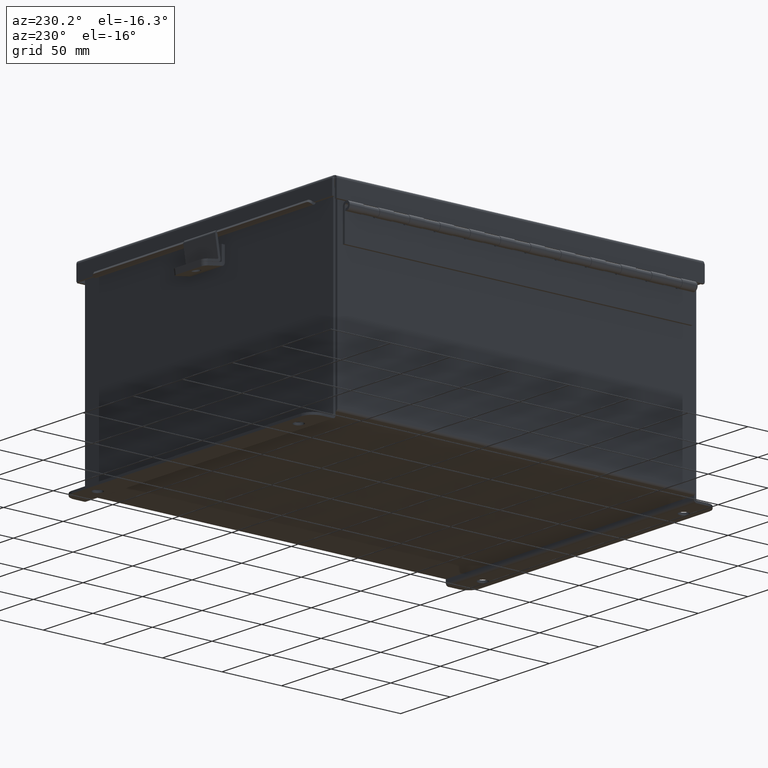
[diagram: clean part render]
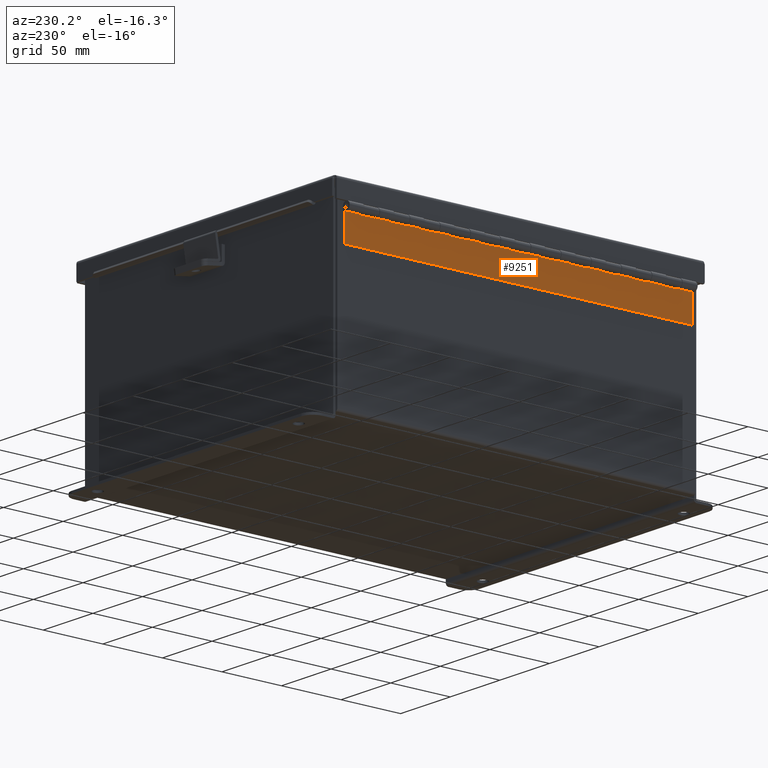
[diagram: same view with one face highlighted and labeled with its STEP entity id]
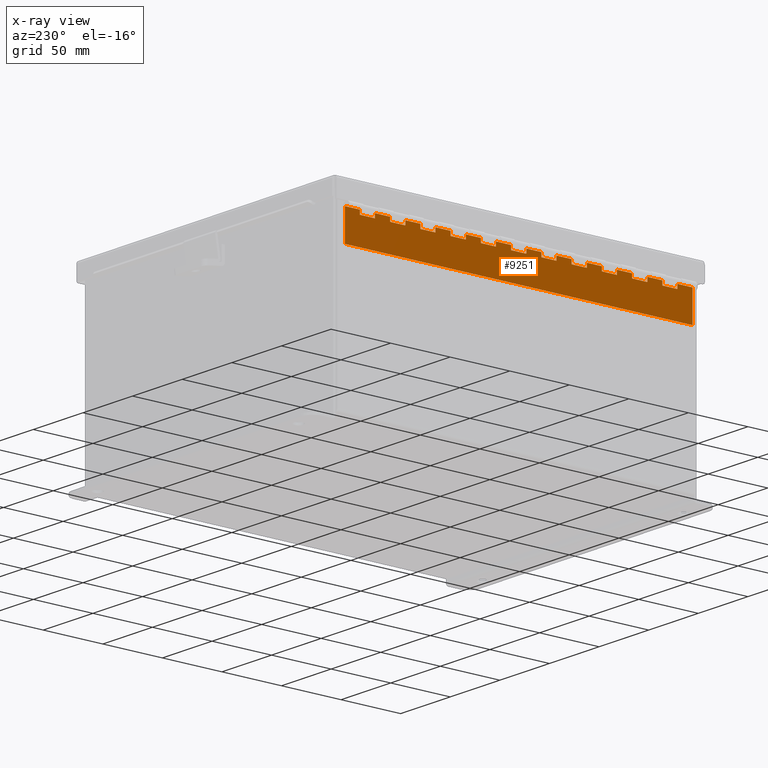
[diagram: x-ray of the same camera — body ghosted, the highlighted face saturated]
A machine part, auxiliary view. The second image highlights one B-rep face of the part: STEP entity #9251.
The next image is the same camera in x-ray: the body ghosted, the highlighted face saturated — about 0% of this face is hidden behind the body in this view.
In plain terms, the highlighted planar face has unit normal (1, -0, 0).
Its self-contained STEP definition (entity closure, byte-faithful):
#199 = LINE ( 'NONE', #3703, #7490 ) ;
#201 = VECTOR ( 'NONE', #17609, 39.37007874015748100 ) ;
#202 = DIRECTION ( 'NONE',  ( -1.000000000000000000, 0.0000000000000000000, 0.0000000000000000000 ) ) ;
#411 = DIRECTION ( 'NONE',  ( -1.000000000000000000, 0.0000000000000000000, 0.0000000000000000000 ) ) ;
#416 = LINE ( 'NONE', #12685, #7262 ) ;
#495 = EDGE_CURVE ( 'NONE', #707, #4912, #10691, .T. ) ;
#596 = VERTEX_POINT ( 'NONE', #8885 ) ;
#638 = LINE ( 'NONE', #2566, #201 ) ;
#656 = ORIENTED_EDGE ( 'NONE', *, *, #15942, .F. ) ;
#707 = VERTEX_POINT ( 'NONE', #2208 ) ;
#740 = VECTOR ( 'NONE', #9662, 39.37007874015748100 ) ;
#760 = EDGE_CURVE ( 'NONE', #14260, #4131, #7270, .T. ) ;
#774 = EDGE_CURVE ( 'NONE', #15747, #15219, #10453, .T. ) ;
#801 = LINE ( 'NONE', #13685, #16627 ) ;
#812 = CARTESIAN_POINT ( 'NONE',  ( 0.0000000000000000000, 11.00000000000000000, 0.0000000000000000000 ) ) ;
#890 = CARTESIAN_POINT ( 'NONE',  ( 0.1365000000000000100, 10.00000000000000000, -1.707404996040164500E-017 ) ) ;
#907 = EDGE_CURVE ( 'NONE', #11477, #2681, #4731, .T. ) ;
#1003 = DIRECTION ( 'NONE',  ( -1.000000000000000000, 8.005415366049128100E-015, 0.0000000000000000000 ) ) ;
#1041 = VECTOR ( 'NONE', #2680, 39.37007874015748100 ) ;
#1085 = DIRECTION ( 'NONE',  ( 1.000000000000000000, 0.0000000000000000000, 0.0000000000000000000 ) ) ;
#1093 = LINE ( 'NONE', #11689, #4342 ) ;
#1110 = EDGE_CURVE ( 'NONE', #4662, #2193, #9207, .T. ) ;
#1178 = ORIENTED_EDGE ( 'NONE', *, *, #10729, .F. ) ;
#1197 = VERTEX_POINT ( 'NONE', #5964 ) ;
#1381 = LINE ( 'NONE', #14331, #3757 ) ;
#1388 = CARTESIAN_POINT ( 'NONE',  ( 0.1365000000000000100, 0.0000000000000000000, -1.707404996040164500E-017 ) ) ;
#1397 = VERTEX_POINT ( 'NONE', #2372 ) ;
#1448 = LINE ( 'NONE', #8013, #15557 ) ;
#1575 = VERTEX_POINT ( 'NONE', #15322 ) ;
#1633 = CARTESIAN_POINT ( 'NONE',  ( 0.2730000000000000200, -9.000000000000000000, 0.0000000000000000000 ) ) ;
#1661 = ORIENTED_EDGE ( 'NONE', *, *, #6716, .F. ) ;
#1754 = VERTEX_POINT ( 'NONE', #10288 ) ;
#1759 = EDGE_CURVE ( 'NONE', #8705, #8850, #199, .T. ) ;
#1771 = DIRECTION ( 'NONE',  ( -1.000000000000000000, 0.0000000000000000000, 0.0000000000000000000 ) ) ;
#1779 = DIRECTION ( 'NONE',  ( -1.000000000000000000, 8.005415366049128100E-015, 0.0000000000000000000 ) ) ;
#1805 = VERTEX_POINT ( 'NONE', #14732 ) ;
#1822 = VECTOR ( 'NONE', #15831, 39.37007874015748100 ) ;
#1858 = VECTOR ( 'NONE', #17017, 39.37007874015748100 ) ;
#1953 = EDGE_CURVE ( 'NONE', #4898, #7984, #4928, .T. ) ;
#2043 = VECTOR ( 'NONE', #11967, 39.37007874015748100 ) ;
#2065 = DIRECTION ( 'NONE',  ( 0.0000000000000000000, 1.000000000000000000, 0.0000000000000000000 ) ) ;
#2073 = VECTOR ( 'NONE', #15021, 39.37007874015748100 ) ;
#2193 = VERTEX_POINT ( 'NONE', #14058 ) ;
#2208 = CARTESIAN_POINT ( 'NONE',  ( 0.2730000000000000200, 9.499999999999998200, 0.0000000000000000000 ) ) ;
#2331 = DIRECTION ( 'NONE',  ( -1.000000000000000000, 0.0000000000000000000, 0.0000000000000000000 ) ) ;
#2371 = VECTOR ( 'NONE', #15329, 39.37007874015748100 ) ;
#2372 = CARTESIAN_POINT ( 'NONE',  ( 0.2730000000000000200, 0.9999999999999992200, 0.0000000000000000000 ) ) ;
#2436 = CARTESIAN_POINT ( 'NONE',  ( 8.405686134351585600E-014, 9.500000000000000000, 0.0000000000000000000 ) ) ;
#2480 = LINE ( 'NONE', #10590, #2043 ) ;
#2566 = CARTESIAN_POINT ( 'NONE',  ( 8.405686134351585600E-014, 1.499999999999999800, 0.0000000000000000000 ) ) ;
#2596 = DIRECTION ( 'NONE',  ( 0.0000000000000000000, 1.000000000000000000, 0.0000000000000000000 ) ) ;
#2680 = DIRECTION ( 'NONE',  ( -1.000000000000000000, -0.0000000000000000000, -0.0000000000000000000 ) ) ;
#2681 = VERTEX_POINT ( 'NONE', #4217 ) ;
#2996 = EDGE_CURVE ( 'NONE', #1754, #7348, #801, .T. ) ;
#2998 = CARTESIAN_POINT ( 'NONE',  ( 0.2730000000000000200, 2.499999999999997800, 0.0000000000000000000 ) ) ;
#3015 = LINE ( 'NONE', #5911, #10258 ) ;
#3044 = LINE ( 'NONE', #8412, #17149 ) ;
#3115 = ORIENTED_EDGE ( 'NONE', *, *, #13998, .F. ) ;
#3157 = VECTOR ( 'NONE', #13425, 39.37007874015748100 ) ;
#3200 = LINE ( 'NONE', #12672, #13649 ) ;
#3228 = VECTOR ( 'NONE', #9245, 39.37007874015748100 ) ;
#3256 = DIRECTION ( 'NONE',  ( 0.0000000000000000000, 1.000000000000000000, 0.0000000000000000000 ) ) ;
#3258 = DIRECTION ( 'NONE',  ( 0.0000000000000000000, 1.000000000000000000, 0.0000000000000000000 ) ) ;
#3259 = CARTESIAN_POINT ( 'NONE',  ( 0.1365000000000000100, 0.0000000000000000000, -1.707404996040164500E-017 ) ) ;
#3360 = CARTESIAN_POINT ( 'NONE',  ( 0.1365000000000000100, 7.000000000000000000, -1.707404996040164500E-017 ) ) ;
#3388 = CARTESIAN_POINT ( 'NONE',  ( 0.2730000000000000200, 0.4999999999999973900, 0.0000000000000000000 ) ) ;
#3507 = CARTESIAN_POINT ( 'NONE',  ( 0.1365000000000000100, 8.999999999999998200, -1.707404996040164500E-017 ) ) ;
#3536 = DIRECTION ( 'NONE',  ( -1.000000000000000000, 0.0000000000000000000, 0.0000000000000000000 ) ) ;
#3538 = CARTESIAN_POINT ( 'NONE',  ( 0.1365000000000000100, 0.0000000000000000000, -1.707404996040164500E-017 ) ) ;
#3652 = EDGE_CURVE ( 'NONE', #8637, #17015, #3044, .T. ) ;
#3682 = ORIENTED_EDGE ( 'NONE', *, *, #14964, .F. ) ;
#3694 = CARTESIAN_POINT ( 'NONE',  ( 0.1365000000000000100, 5.999999999999999100, -1.707404996040164500E-017 ) ) ;
#3703 = CARTESIAN_POINT ( 'NONE',  ( 0.0000000000000000000, 1.999999999999999300, 0.0000000000000000000 ) ) ;
#3725 = LINE ( 'NONE', #9006, #10101 ) ;
#3757 = VECTOR ( 'NONE', #15631, 39.37007874015748100 ) ;
#3812 = ORIENTED_EDGE ( 'NONE', *, *, #4705, .T. ) ;
#3829 = ORIENTED_EDGE ( 'NONE', *, *, #1110, .F. ) ;
#3867 = ORIENTED_EDGE ( 'NONE', *, *, #5147, .T. ) ;
#3972 = PLANE ( 'NONE',  #16067 ) ;
#4067 = CARTESIAN_POINT ( 'NONE',  ( 0.1365000000000000100, 0.4999999999999996100, -1.707404996040164500E-017 ) ) ;
#4103 = VERTEX_POINT ( 'NONE', #16162 ) ;
#4104 = VECTOR ( 'NONE', #1003, 39.37007874015748100 ) ;
#4111 = VECTOR ( 'NONE', #11603, 39.37007874015748100 ) ;
#4131 = VERTEX_POINT ( 'NONE', #13473 ) ;
#4175 = DIRECTION ( 'NONE',  ( 0.0000000000000000000, 1.000000000000000000, 0.0000000000000000000 ) ) ;
#4204 = CARTESIAN_POINT ( 'NONE',  ( 0.0000000000000000000, 8.000000000000000000, 0.0000000000000000000 ) ) ;
#4217 = CARTESIAN_POINT ( 'NONE',  ( 0.1365000000000000100, 10.50000000000000000, -1.707404996040164500E-017 ) ) ;
#4307 = VECTOR ( 'NONE', #8999, 39.37007874015748100 ) ;
#4320 = EDGE_CURVE ( 'NONE', #596, #13833, #11757, .T. ) ;
#4342 = VECTOR ( 'NONE', #14461, 39.37007874015748100 ) ;
#4362 = ORIENTED_EDGE ( 'NONE', *, *, #15696, .F. ) ;
#4381 = ORIENTED_EDGE ( 'NONE', *, *, #17194, .T. ) ;
#4414 = LINE ( 'NONE', #4204, #740 ) ;
#4430 = VERTEX_POINT ( 'NONE', #16193 ) ;
#4481 = VECTOR ( 'NONE', #14592, 39.37007874015748100 ) ;
#4490 = CARTESIAN_POINT ( 'NONE',  ( 0.2730000000000000200, 8.999999999999998200, 0.0000000000000000000 ) ) ;
#4565 = DIRECTION ( 'NONE',  ( 0.0000000000000000000, 1.000000000000000000, 0.0000000000000000000 ) ) ;
#4614 = ORIENTED_EDGE ( 'NONE', *, *, #4867, .T. ) ;
#4621 = VERTEX_POINT ( 'NONE', #2998 ) ;
#4662 = VERTEX_POINT ( 'NONE', #5804 ) ;
#4705 = EDGE_CURVE ( 'NONE', #4662, #1805, #17118, .T. ) ;
#4712 = LINE ( 'NONE', #8125, #1041 ) ;
#4722 = EDGE_CURVE ( 'NONE', #1397, #6184, #3015, .T. ) ;
#4731 = LINE ( 'NONE', #17676, #15600 ) ;
#4756 = CARTESIAN_POINT ( 'NONE',  ( 0.2730000000000000200, -2.999999999999999600, 0.0000000000000000000 ) ) ;
#4867 = EDGE_CURVE ( 'NONE', #5141, #4430, #11304, .T. ) ;
#4898 = VERTEX_POINT ( 'NONE', #7574 ) ;
#4912 = VERTEX_POINT ( 'NONE', #10357 ) ;
#4926 = LINE ( 'NONE', #13062, #11716 ) ;
#4928 = LINE ( 'NONE', #10822, #8119 ) ;
#5066 = ORIENTED_EDGE ( 'NONE', *, *, #11860, .F. ) ;
#5141 = VERTEX_POINT ( 'NONE', #17564 ) ;
#5147 = EDGE_CURVE ( 'NONE', #16373, #6537, #638, .T. ) ;
#5330 = LINE ( 'NONE', #11804, #4481 ) ;
#5341 = DIRECTION ( 'NONE',  ( -1.000000000000000000, 0.0000000000000000000, -0.0000000000000000000 ) ) ;
#5347 = EDGE_CURVE ( 'NONE', #4103, #12760, #7688, .T. ) ;
#5365 = DIRECTION ( 'NONE',  ( -1.000000000000000000, 0.0000000000000000000, 0.0000000000000000000 ) ) ;
#5420 = DIRECTION ( 'NONE',  ( -1.000000000000000000, 0.0000000000000000000, 0.0000000000000000000 ) ) ;
#5474 = LINE ( 'NONE', #3538, #1822 ) ;
#5490 = VECTOR ( 'NONE', #11639, 39.37007874015748100 ) ;
#5509 = LINE ( 'NONE', #4756, #1858 ) ;
#5510 = ORIENTED_EDGE ( 'NONE', *, *, #11465, .F. ) ;
#5515 = DIRECTION ( 'NONE',  ( -1.000000000000000000, 8.005415366049128100E-015, 0.0000000000000000000 ) ) ;
#5531 = CARTESIAN_POINT ( 'NONE',  ( 0.2730000000000000200, 10.49999999999999800, 0.0000000000000000000 ) ) ;
#5544 = LINE ( 'NONE', #7260, #12353 ) ;
#5585 = ORIENTED_EDGE ( 'NONE', *, *, #2996, .T. ) ;
#5733 = VERTEX_POINT ( 'NONE', #7927 ) ;
#5793 = CARTESIAN_POINT ( 'NONE',  ( 0.2730000000000000200, -7.000000000000000000, 0.0000000000000000000 ) ) ;
#5804 = CARTESIAN_POINT ( 'NONE',  ( 0.2730000000000000200, 3.499999999999998200, 0.0000000000000000000 ) ) ;
#5817 = LINE ( 'NONE', #6936, #12634 ) ;
#5854 = CARTESIAN_POINT ( 'NONE',  ( 8.405686134351585600E-014, 3.500000000000000400, 0.0000000000000000000 ) ) ;
#5895 = EDGE_CURVE ( 'NONE', #707, #13164, #13197, .T. ) ;
#5911 = CARTESIAN_POINT ( 'NONE',  ( 0.0000000000000000000, 0.9999999999999992200, 0.0000000000000000000 ) ) ;
#5964 = CARTESIAN_POINT ( 'NONE',  ( 0.2730000000000000200, 11.00000000000000000, 0.0000000000000000000 ) ) ;
#5987 = CARTESIAN_POINT ( 'NONE',  ( 0.2730000000000000200, -1.000000000000000000, 0.0000000000000000000 ) ) ;
#6011 = DIRECTION ( 'NONE',  ( -1.000000000000000000, 8.005415366049128100E-015, 0.0000000000000000000 ) ) ;
#6085 = DIRECTION ( 'NONE',  ( 0.0000000000000000000, 1.000000000000000000, 0.0000000000000000000 ) ) ;
#6094 = VECTOR ( 'NONE', #1085, 39.37007874015748100 ) ;
#6184 = VERTEX_POINT ( 'NONE', #7083 ) ;
#6338 = LINE ( 'NONE', #7605, #5490 ) ;
#6367 = ORIENTED_EDGE ( 'NONE', *, *, #9642, .T. ) ;
#6525 = CARTESIAN_POINT ( 'NONE',  ( 8.405686134351585600E-014, 6.500000000000000000, 0.0000000000000000000 ) ) ;
#6537 = VERTEX_POINT ( 'NONE', #9161 ) ;
#6582 = ORIENTED_EDGE ( 'NONE', *, *, #5895, .T. ) ;
#6617 = VECTOR ( 'NONE', #3256, 39.37007874015748100 ) ;
#6716 = EDGE_CURVE ( 'NONE', #15219, #14297, #12527, .T. ) ;
#6755 = ORIENTED_EDGE ( 'NONE', *, *, #15280, .T. ) ;
#6936 = CARTESIAN_POINT ( 'NONE',  ( 0.1365000000000000100, 0.0000000000000000000, -1.707404996040164500E-017 ) ) ;
#6987 = ORIENTED_EDGE ( 'NONE', *, *, #12339, .F. ) ;
#6997 = LINE ( 'NONE', #3259, #9774 ) ;
#7046 = EDGE_CURVE ( 'NONE', #4103, #17311, #5330, .T. ) ;
#7083 = CARTESIAN_POINT ( 'NONE',  ( 0.1365000000000000100, 0.9999999999999992200, -1.707404996040164500E-017 ) ) ;
#7123 = DIRECTION ( 'NONE',  ( 0.0000000000000000000, 1.000000000000000000, 0.0000000000000000000 ) ) ;
#7229 = VECTOR ( 'NONE', #5365, 39.37007874015748100 ) ;
#7260 = CARTESIAN_POINT ( 'NONE',  ( 8.405686134351585600E-014, 0.4999999999999996100, 0.0000000000000000000 ) ) ;
#7262 = VECTOR ( 'NONE', #4565, 39.37007874015748100 ) ;
#7270 = LINE ( 'NONE', #13299, #4104 ) ;
#7345 = CARTESIAN_POINT ( 'NONE',  ( 0.1365000000000000100, 2.999999999999999600, -1.707404996040164500E-017 ) ) ;
#7348 = VERTEX_POINT ( 'NONE', #7426 ) ;
#7426 = CARTESIAN_POINT ( 'NONE',  ( 0.1365000000000000100, 5.500000000000000000, -1.707404996040164500E-017 ) ) ;
#7490 = VECTOR ( 'NONE', #17361, 39.37007874015748100 ) ;
#7507 = VERTEX_POINT ( 'NONE', #10510 ) ;
#7574 = CARTESIAN_POINT ( 'NONE',  ( 0.2730000000000000200, 2.999999999999999600, 0.0000000000000000000 ) ) ;
#7605 = CARTESIAN_POINT ( 'NONE',  ( 0.2730000000000000200, -10.00000000000000000, 0.0000000000000000000 ) ) ;
#7618 = EDGE_CURVE ( 'NONE', #16467, #13164, #1448, .T. ) ;
#7688 = LINE ( 'NONE', #15258, #10876 ) ;
#7776 = VECTOR ( 'NONE', #7123, 39.37007874015748100 ) ;
#7903 = DIRECTION ( 'NONE',  ( 0.0000000000000000000, 1.000000000000000000, 0.0000000000000000000 ) ) ;
#7927 = CARTESIAN_POINT ( 'NONE',  ( 0.1365000000000000100, 4.000000000000000000, -1.707404996040164500E-017 ) ) ;
#7984 = VERTEX_POINT ( 'NONE', #7345 ) ;
#7996 = ORIENTED_EDGE ( 'NONE', *, *, #1759, .F. ) ;
#8013 = CARTESIAN_POINT ( 'NONE',  ( 0.1365000000000000100, 0.0000000000000000000, -1.707404996040164500E-017 ) ) ;
#8019 = EDGE_CURVE ( 'NONE', #13582, #1575, #5509, .T. ) ;
#8046 = ORIENTED_EDGE ( 'NONE', *, *, #495, .F. ) ;
#8088 = VERTEX_POINT ( 'NONE', #11676 ) ;
#8119 = VECTOR ( 'NONE', #5420, 39.37007874015748100 ) ;
#8125 = CARTESIAN_POINT ( 'NONE',  ( 0.0000000000000000000, 11.50000000000000000, 0.0000000000000000000 ) ) ;
#8328 = VECTOR ( 'NONE', #2065, 39.37007874015748100 ) ;
#8394 = CARTESIAN_POINT ( 'NONE',  ( 0.0000000000000000000, 7.000000000000000000, 0.0000000000000000000 ) ) ;
#8412 = CARTESIAN_POINT ( 'NONE',  ( 0.1365000000000000100, 0.0000000000000000000, -1.707404996040164500E-017 ) ) ;
#8454 = DIRECTION ( 'NONE',  ( 0.0000000000000000000, 1.000000000000000000, 0.0000000000000000000 ) ) ;
#8486 = EDGE_CURVE ( 'NONE', #13582, #7507, #13149, .T. ) ;
#8575 = VECTOR ( 'NONE', #202, 39.37007874015748100 ) ;
#8576 = DIRECTION ( 'NONE',  ( 0.0000000000000000000, 1.000000000000000000, 0.0000000000000000000 ) ) ;
#8628 = ORIENTED_EDGE ( 'NONE', *, *, #3652, .F. ) ;
#8637 = VERTEX_POINT ( 'NONE', #17181 ) ;
#8647 = CARTESIAN_POINT ( 'NONE',  ( 0.1365000000000000100, 8.000000000000000000, -1.707404996040164500E-017 ) ) ;
#8704 = DIRECTION ( 'NONE',  ( -1.000000000000000000, 8.005415366049128100E-015, 0.0000000000000000000 ) ) ;
#8705 = VERTEX_POINT ( 'NONE', #17308 ) ;
#8769 = CARTESIAN_POINT ( 'NONE',  ( 0.2730000000000000200, 0.0000000000000000000, 0.0000000000000000000 ) ) ;
#8771 = VECTOR ( 'NONE', #6085, 39.37007874015748100 ) ;
#8772 = EDGE_CURVE ( 'NONE', #5733, #17311, #2480, .T. ) ;
#8850 = VERTEX_POINT ( 'NONE', #11262 ) ;
#8885 = CARTESIAN_POINT ( 'NONE',  ( 0.2730000000000000200, 7.000000000000000000, 0.0000000000000000000 ) ) ;
#8901 = ORIENTED_EDGE ( 'NONE', *, *, #8486, .T. ) ;
#8931 = LINE ( 'NONE', #6525, #15345 ) ;
#8972 = ORIENTED_EDGE ( 'NONE', *, *, #774, .F. ) ;
#8999 = DIRECTION ( 'NONE',  ( -1.000000000000000000, 0.0000000000000000000, 0.0000000000000000000 ) ) ;
#9006 = CARTESIAN_POINT ( 'NONE',  ( 0.1365000000000000100, 0.0000000000000000000, -1.707404996040164500E-017 ) ) ;
#9041 = EDGE_CURVE ( 'NONE', #9099, #2681, #5474, .T. ) ;
#9099 = VERTEX_POINT ( 'NONE', #890 ) ;
#9161 = CARTESIAN_POINT ( 'NONE',  ( 0.1365000000000000100, 1.499999999999999800, -1.707404996040164500E-017 ) ) ;
#9207 = LINE ( 'NONE', #5793, #2371 ) ;
#9217 = CARTESIAN_POINT ( 'NONE',  ( 0.1364999999999999000, 0.0000000000000000000, 0.0000000000000000000 ) ) ;
#9245 = DIRECTION ( 'NONE',  ( -1.000000000000000000, 0.0000000000000000000, 0.0000000000000000000 ) ) ;
#9251 = ADVANCED_FACE ( 'NONE', ( #17000 ), #3972, .F. ) ;
#9303 = ORIENTED_EDGE ( 'NONE', *, *, #7618, .F. ) ;
#9364 = ORIENTED_EDGE ( 'NONE', *, *, #15016, .T. ) ;
#9379 = EDGE_CURVE ( 'NONE', #1575, #10677, #4414, .T. ) ;
#9486 = DIRECTION ( 'NONE',  ( -1.000000000000000000, 8.005415366049128100E-015, 0.0000000000000000000 ) ) ;
#9590 = CARTESIAN_POINT ( 'NONE',  ( 0.2730000000000000200, 5.000000000000000000, 0.0000000000000000000 ) ) ;
#9642 = EDGE_CURVE ( 'NONE', #4621, #12888, #1381, .T. ) ;
#9650 = CARTESIAN_POINT ( 'NONE',  ( 0.1365000000000000100, 5.000000000000000000, -1.707404996040164500E-017 ) ) ;
#9661 = CARTESIAN_POINT ( 'NONE',  ( 0.2730000000000000200, 8.499999999999996400, 0.0000000000000000000 ) ) ;
#9662 = DIRECTION ( 'NONE',  ( -1.000000000000000000, 0.0000000000000000000, 0.0000000000000000000 ) ) ;
#9698 = ORIENTED_EDGE ( 'NONE', *, *, #12004, .F. ) ;
#9774 = VECTOR ( 'NONE', #10097, 39.37007874015748100 ) ;
#9850 = VECTOR ( 'NONE', #7903, 39.37007874015748100 ) ;
#9866 = LINE ( 'NONE', #13637, #13059 ) ;
#9948 = CARTESIAN_POINT ( 'NONE',  ( 0.0000000000000000000, 4.000000000000000000, 0.0000000000000000000 ) ) ;
#10097 = DIRECTION ( 'NONE',  ( 0.0000000000000000000, 1.000000000000000000, 0.0000000000000000000 ) ) ;
#10101 = VECTOR ( 'NONE', #10356, 39.37007874015748100 ) ;
#10130 = EDGE_CURVE ( 'NONE', #16373, #8705, #15043, .T. ) ;
#10255 = CARTESIAN_POINT ( 'NONE',  ( 1.136500000000000100, 0.0000000000000000000, 0.0000000000000000000 ) ) ;
#10258 = VECTOR ( 'NONE', #411, 39.37007874015748100 ) ;
#10288 = CARTESIAN_POINT ( 'NONE',  ( 0.2730000000000000200, 5.499999999999997300, 0.0000000000000000000 ) ) ;
#10356 = DIRECTION ( 'NONE',  ( 0.0000000000000000000, 1.000000000000000000, 0.0000000000000000000 ) ) ;
#10357 = CARTESIAN_POINT ( 'NONE',  ( 0.2730000000000000200, 10.00000000000000000, 0.0000000000000000000 ) ) ;
#10387 = LINE ( 'NONE', #12032, #3157 ) ;
#10391 = ORIENTED_EDGE ( 'NONE', *, *, #15358, .F. ) ;
#10453 = LINE ( 'NONE', #16072, #3228 ) ;
#10494 = CARTESIAN_POINT ( 'NONE',  ( 0.0000000000000000000, 5.000000000000000000, 0.0000000000000000000 ) ) ;
#10510 = CARTESIAN_POINT ( 'NONE',  ( 0.1365000000000000100, 7.500000000000000000, -1.707404996040164500E-017 ) ) ;
#10590 = CARTESIAN_POINT ( 'NONE',  ( 0.1365000000000000100, 0.0000000000000000000, -1.707404996040164500E-017 ) ) ;
#10599 = DIRECTION ( 'NONE',  ( -1.000000000000000000, 8.005415366049128100E-015, 0.0000000000000000000 ) ) ;
#10677 = VERTEX_POINT ( 'NONE', #8647 ) ;
#10691 = LINE ( 'NONE', #5987, #17553 ) ;
#10729 = EDGE_CURVE ( 'NONE', #10677, #4131, #3725, .T. ) ;
#10822 = CARTESIAN_POINT ( 'NONE',  ( 0.0000000000000000000, 2.999999999999999600, 0.0000000000000000000 ) ) ;
#10876 = VECTOR ( 'NONE', #8454, 39.37007874015748100 ) ;
#10976 = DIRECTION ( 'NONE',  ( 0.0000000000000000000, 1.000000000000000000, 0.0000000000000000000 ) ) ;
#11071 = CARTESIAN_POINT ( 'NONE',  ( 0.1365000000000000100, 6.500000000000000000, -1.707404996040164500E-017 ) ) ;
#11070 = LINE ( 'NONE', #812, #4307 ) ;
#11262 = CARTESIAN_POINT ( 'NONE',  ( 0.1365000000000000100, 1.999999999999999300, -1.707404996040164500E-017 ) ) ;
#11288 = LINE ( 'NONE', #9948, #15384 ) ;
#11290 = ORIENTED_EDGE ( 'NONE', *, *, #13737, .F. ) ;
#11304 = LINE ( 'NONE', #10255, #4111 ) ;
#11406 = VERTEX_POINT ( 'NONE', #4067 ) ;
#11465 = EDGE_CURVE ( 'NONE', #8088, #596, #9866, .T. ) ;
#11477 = VERTEX_POINT ( 'NONE', #5531 ) ;
#11517 = EDGE_CURVE ( 'NONE', #6184, #6537, #5817, .T. ) ;
#11603 = DIRECTION ( 'NONE',  ( -1.187759997245331800E-017, 1.000000000000000000, 0.0000000000000000000 ) ) ;
#11639 = DIRECTION ( 'NONE',  ( 0.0000000000000000000, 1.000000000000000000, 0.0000000000000000000 ) ) ;
#11676 = CARTESIAN_POINT ( 'NONE',  ( 0.2730000000000000200, 6.499999999999998200, 0.0000000000000000000 ) ) ;
#11689 = CARTESIAN_POINT ( 'NONE',  ( 0.1365000000000000100, 0.0000000000000000000, -1.707404996040164500E-017 ) ) ;
#11716 = VECTOR ( 'NONE', #3536, 39.37007874015748100 ) ;
#11757 = LINE ( 'NONE', #8394, #8575 ) ;
#11774 = ORIENTED_EDGE ( 'NONE', *, *, #16491, .F. ) ;
#11804 = CARTESIAN_POINT ( 'NONE',  ( 8.405686134351585600E-014, 4.500000000000000900, 0.0000000000000000000 ) ) ;
#11860 = EDGE_CURVE ( 'NONE', #7984, #1805, #1093, .T. ) ;
#11967 = DIRECTION ( 'NONE',  ( 0.0000000000000000000, 1.000000000000000000, 0.0000000000000000000 ) ) ;
#12004 = EDGE_CURVE ( 'NONE', #12790, #7348, #13480, .T. ) ;
#12032 = CARTESIAN_POINT ( 'NONE',  ( 0.1365000000000000100, 0.0000000000000000000, -1.707404996040164500E-017 ) ) ;
#12043 = ORIENTED_EDGE ( 'NONE', *, *, #8019, .F. ) ;
#12128 = CARTESIAN_POINT ( 'NONE',  ( 0.0000000000000000000, 10.00000000000000000, 0.0000000000000000000 ) ) ;
#12278 = ORIENTED_EDGE ( 'NONE', *, *, #10130, .F. ) ;
#12335 = ORIENTED_EDGE ( 'NONE', *, *, #4320, .F. ) ;
#12339 = EDGE_CURVE ( 'NONE', #11477, #1197, #12397, .T. ) ;
#12353 = VECTOR ( 'NONE', #6011, 39.37007874015748100 ) ;
#12371 = ORIENTED_EDGE ( 'NONE', *, *, #5347, .F. ) ;
#12397 = LINE ( 'NONE', #8769, #8771 ) ;
#12527 = LINE ( 'NONE', #1388, #2073 ) ;
#12634 = VECTOR ( 'NONE', #10976, 39.37007874015748100 ) ;
#12672 = CARTESIAN_POINT ( 'NONE',  ( 0.2730000000000000200, -2.000000000000000000, 0.0000000000000000000 ) ) ;
#12685 = CARTESIAN_POINT ( 'NONE',  ( 0.2730000000000000200, -5.000000000000000000, 0.0000000000000000000 ) ) ;
#12714 = CARTESIAN_POINT ( 'NONE',  ( 0.1365000000000000100, 11.50000000000000000, -1.707404996040164500E-017 ) ) ;
#12760 = VERTEX_POINT ( 'NONE', #9590 ) ;
#12790 = VERTEX_POINT ( 'NONE', #9650 ) ;
#12806 = CARTESIAN_POINT ( 'NONE',  ( 0.2730000000000000200, 1.499999999999997600, 0.0000000000000000000 ) ) ;
#12864 = ORIENTED_EDGE ( 'NONE', *, *, #907, .T. ) ;
#12888 = VERTEX_POINT ( 'NONE', #16703 ) ;
#12947 = VERTEX_POINT ( 'NONE', #4490 ) ;
#13059 = VECTOR ( 'NONE', #4175, 39.37007874015748100 ) ;
#13062 = CARTESIAN_POINT ( 'NONE',  ( 0.0000000000000000000, 8.999999999999998200, 0.0000000000000000000 ) ) ;
#13149 = LINE ( 'NONE', #16900, #13593 ) ;
#13164 = VERTEX_POINT ( 'NONE', #15660 ) ;
#13197 = LINE ( 'NONE', #2436, #13643 ) ;
#13299 = CARTESIAN_POINT ( 'NONE',  ( 8.405686134351585600E-014, 8.500000000000000000, 0.0000000000000000000 ) ) ;
#13425 = DIRECTION ( 'NONE',  ( 0.0000000000000000000, 1.000000000000000000, 0.0000000000000000000 ) ) ;
#13472 = VECTOR ( 'NONE', #1779, 39.37007874015748100 ) ;
#13473 = CARTESIAN_POINT ( 'NONE',  ( 0.1365000000000000100, 8.500000000000000000, -1.707404996040164500E-017 ) ) ;
#13480 = LINE ( 'NONE', #17446, #9850 ) ;
#13486 = DIRECTION ( 'NONE',  ( 0.0000000000000000000, 0.0000000000000000000, -1.000000000000000000 ) ) ;
#13582 = VERTEX_POINT ( 'NONE', #15121 ) ;
#13593 = VECTOR ( 'NONE', #8704, 39.37007874015748100 ) ;
#13637 = CARTESIAN_POINT ( 'NONE',  ( 0.2730000000000000200, -4.000000000000000000, 0.0000000000000000000 ) ) ;
#13643 = VECTOR ( 'NONE', #10599, 39.37007874015748100 ) ;
#13649 = VECTOR ( 'NONE', #8576, 39.37007874015748100 ) ;
#13685 = CARTESIAN_POINT ( 'NONE',  ( 8.405686134351585600E-014, 5.500000000000000000, 0.0000000000000000000 ) ) ;
#13737 = EDGE_CURVE ( 'NONE', #4621, #4898, #17533, .T. ) ;
#13775 = LINE ( 'NONE', #17451, #6094 ) ;
#13833 = VERTEX_POINT ( 'NONE', #3360 ) ;
#13853 = ORIENTED_EDGE ( 'NONE', *, *, #14159, .T. ) ;
#13932 = EDGE_CURVE ( 'NONE', #12947, #16467, #4926, .T. ) ;
#13998 = EDGE_CURVE ( 'NONE', #12760, #12790, #14096, .T. ) ;
#14058 = CARTESIAN_POINT ( 'NONE',  ( 0.2730000000000000200, 4.000000000000000000, 0.0000000000000000000 ) ) ;
#14096 = LINE ( 'NONE', #10494, #17725 ) ;
#14159 = EDGE_CURVE ( 'NONE', #4430, #17015, #4712, .T. ) ;
#14260 = VERTEX_POINT ( 'NONE', #9661 ) ;
#14297 = VERTEX_POINT ( 'NONE', #11071 ) ;
#14330 = CARTESIAN_POINT ( 'NONE',  ( 0.1365000000000000100, 0.0000000000000000000, -1.707404996040164500E-017 ) ) ;
#14331 = CARTESIAN_POINT ( 'NONE',  ( 8.405686134351585600E-014, 2.500000000000000000, 0.0000000000000000000 ) ) ;
#14380 = EDGE_CURVE ( 'NONE', #2193, #5733, #11288, .T. ) ;
#14412 = EDGE_CURVE ( 'NONE', #1754, #15747, #416, .T. ) ;
#14461 = DIRECTION ( 'NONE',  ( 0.0000000000000000000, 1.000000000000000000, 0.0000000000000000000 ) ) ;
#14470 = ORIENTED_EDGE ( 'NONE', *, *, #8772, .F. ) ;
#14570 = EDGE_CURVE ( 'NONE', #15275, #11406, #15593, .T. ) ;
#14592 = DIRECTION ( 'NONE',  ( -1.000000000000000000, 8.005415366049128100E-015, 0.0000000000000000000 ) ) ;
#14627 = EDGE_CURVE ( 'NONE', #1197, #8637, #11070, .T. ) ;
#14732 = CARTESIAN_POINT ( 'NONE',  ( 0.1365000000000000100, 3.500000000000000400, -1.707404996040164500E-017 ) ) ;
#14754 = ORIENTED_EDGE ( 'NONE', *, *, #14570, .F. ) ;
#14906 = EDGE_LOOP ( 'NONE', ( #9364, #14754, #4381, #4614, #13853, #8628, #16997, #6987, #12864, #17703, #10391, #8046, #6582, #9303, #16629, #3682, #16234, #1178, #17733, #12043, #8901, #4362, #12335, #5510, #6755, #1661, #8972, #14925, #5585, #9698, #3115, #12371, #17196, #14470, #17150, #3829, #3812, #5066, #17690, #11290, #6367, #656, #7996, #12278, #3867, #15911, #16631, #11774 ) ) ;
#14925 = ORIENTED_EDGE ( 'NONE', *, *, #14412, .F. ) ;
#14933 = LINE ( 'NONE', #12128, #7229 ) ;
#14964 = EDGE_CURVE ( 'NONE', #14260, #12947, #3200, .T. ) ;
#15016 = EDGE_CURVE ( 'NONE', #16412, #11406, #5544, .T. ) ;
#15021 = DIRECTION ( 'NONE',  ( 0.0000000000000000000, 1.000000000000000000, 0.0000000000000000000 ) ) ;
#15043 = LINE ( 'NONE', #1633, #7776 ) ;
#15121 = CARTESIAN_POINT ( 'NONE',  ( 0.2730000000000000200, 7.499999999999998200, 0.0000000000000000000 ) ) ;
#15219 = VERTEX_POINT ( 'NONE', #3694 ) ;
#15220 = DIRECTION ( 'NONE',  ( 0.0000000000000000000, 1.000000000000000000, 0.0000000000000000000 ) ) ;
#15258 = CARTESIAN_POINT ( 'NONE',  ( 0.2730000000000000200, -5.999999999999999100, 0.0000000000000000000 ) ) ;
#15275 = VERTEX_POINT ( 'NONE', #9217 ) ;
#15280 = EDGE_CURVE ( 'NONE', #8088, #14297, #8931, .T. ) ;
#15322 = CARTESIAN_POINT ( 'NONE',  ( 0.2730000000000000200, 8.000000000000000000, 0.0000000000000000000 ) ) ;
#15329 = DIRECTION ( 'NONE',  ( 0.0000000000000000000, 1.000000000000000000, 0.0000000000000000000 ) ) ;
#15345 = VECTOR ( 'NONE', #17465, 39.37007874015748100 ) ;
#15358 = EDGE_CURVE ( 'NONE', #4912, #9099, #14933, .T. ) ;
#15384 = VECTOR ( 'NONE', #1771, 39.37007874015748100 ) ;
#15472 = CARTESIAN_POINT ( 'NONE',  ( 0.2730000000000000200, -8.000000000000000000, 0.0000000000000000000 ) ) ;
#15557 = VECTOR ( 'NONE', #2596, 39.37007874015748100 ) ;
#15593 = LINE ( 'NONE', #14330, #8328 ) ;
#15600 = VECTOR ( 'NONE', #9486, 39.37007874015748100 ) ;
#15631 = DIRECTION ( 'NONE',  ( -1.000000000000000000, 8.005415366049128100E-015, 0.0000000000000000000 ) ) ;
#15660 = CARTESIAN_POINT ( 'NONE',  ( 0.1365000000000000100, 9.500000000000000000, -1.707404996040164500E-017 ) ) ;
#15696 = EDGE_CURVE ( 'NONE', #13833, #7507, #6997, .T. ) ;
#15747 = VERTEX_POINT ( 'NONE', #16970 ) ;
#15831 = DIRECTION ( 'NONE',  ( 0.0000000000000000000, 1.000000000000000000, 0.0000000000000000000 ) ) ;
#15911 = ORIENTED_EDGE ( 'NONE', *, *, #11517, .F. ) ;
#15942 = EDGE_CURVE ( 'NONE', #8850, #12888, #10387, .T. ) ;
#16067 = AXIS2_PLACEMENT_3D ( 'NONE', #17575, #13486, #5341 ) ;
#16072 = CARTESIAN_POINT ( 'NONE',  ( 0.0000000000000000000, 5.999999999999999100, 0.0000000000000000000 ) ) ;
#16162 = CARTESIAN_POINT ( 'NONE',  ( 0.2730000000000000200, 4.499999999999998200, 0.0000000000000000000 ) ) ;
#16193 = CARTESIAN_POINT ( 'NONE',  ( 1.136500000000000100, 11.50000000000000000, 0.0000000000000000000 ) ) ;
#16234 = ORIENTED_EDGE ( 'NONE', *, *, #760, .T. ) ;
#16264 = CARTESIAN_POINT ( 'NONE',  ( 0.1365000000000000100, 4.500000000000000900, -1.707404996040164500E-017 ) ) ;
#16373 = VERTEX_POINT ( 'NONE', #12806 ) ;
#16412 = VERTEX_POINT ( 'NONE', #3388 ) ;
#16467 = VERTEX_POINT ( 'NONE', #3507 ) ;
#16491 = EDGE_CURVE ( 'NONE', #16412, #1397, #6338, .T. ) ;
#16627 = VECTOR ( 'NONE', #5515, 39.37007874015748100 ) ;
#16629 = ORIENTED_EDGE ( 'NONE', *, *, #13932, .F. ) ;
#16631 = ORIENTED_EDGE ( 'NONE', *, *, #4722, .F. ) ;
#16703 = CARTESIAN_POINT ( 'NONE',  ( 0.1365000000000000100, 2.500000000000000000, -1.707404996040164500E-017 ) ) ;
#16900 = CARTESIAN_POINT ( 'NONE',  ( 8.405686134351585600E-014, 7.500000000000000000, 0.0000000000000000000 ) ) ;
#16970 = CARTESIAN_POINT ( 'NONE',  ( 0.2730000000000000200, 5.999999999999999100, 0.0000000000000000000 ) ) ;
#16997 = ORIENTED_EDGE ( 'NONE', *, *, #14627, .F. ) ;
#17000 = FACE_OUTER_BOUND ( 'NONE', #14906, .T. ) ;
#17015 = VERTEX_POINT ( 'NONE', #12714 ) ;
#17017 = DIRECTION ( 'NONE',  ( 0.0000000000000000000, 1.000000000000000000, 0.0000000000000000000 ) ) ;
#17118 = LINE ( 'NONE', #5854, #13472 ) ;
#17149 = VECTOR ( 'NONE', #15220, 39.37007874015748100 ) ;
#17150 = ORIENTED_EDGE ( 'NONE', *, *, #14380, .F. ) ;
#17181 = CARTESIAN_POINT ( 'NONE',  ( 0.1365000000000000100, 11.00000000000000000, -1.707404996040164500E-017 ) ) ;
#17194 = EDGE_CURVE ( 'NONE', #15275, #5141, #13775, .T. ) ;
#17196 = ORIENTED_EDGE ( 'NONE', *, *, #7046, .T. ) ;
#17308 = CARTESIAN_POINT ( 'NONE',  ( 0.2730000000000000200, 1.999999999999999300, 0.0000000000000000000 ) ) ;
#17311 = VERTEX_POINT ( 'NONE', #16264 ) ;
#17361 = DIRECTION ( 'NONE',  ( -1.000000000000000000, 0.0000000000000000000, 0.0000000000000000000 ) ) ;
#17446 = CARTESIAN_POINT ( 'NONE',  ( 0.1365000000000000100, 0.0000000000000000000, -1.707404996040164500E-017 ) ) ;
#17451 = CARTESIAN_POINT ( 'NONE',  ( 0.0000000000000000000, 0.0000000000000000000, 0.0000000000000000000 ) ) ;
#17465 = DIRECTION ( 'NONE',  ( -1.000000000000000000, 8.005415366049128100E-015, 0.0000000000000000000 ) ) ;
#17533 = LINE ( 'NONE', #15472, #6617 ) ;
#17553 = VECTOR ( 'NONE', #3258, 39.37007874015748100 ) ;
#17564 = CARTESIAN_POINT ( 'NONE',  ( 1.136500000000000100, 0.0000000000000000000, 0.0000000000000000000 ) ) ;
#17575 = CARTESIAN_POINT ( 'NONE',  ( 1.136499999999999800, 11.50000000000000000, 0.0000000000000000000 ) ) ;
#17609 = DIRECTION ( 'NONE',  ( -1.000000000000000000, 8.005415366049128100E-015, 0.0000000000000000000 ) ) ;
#17676 = CARTESIAN_POINT ( 'NONE',  ( 8.405686134351585600E-014, 10.50000000000000000, 0.0000000000000000000 ) ) ;
#17690 = ORIENTED_EDGE ( 'NONE', *, *, #1953, .F. ) ;
#17703 = ORIENTED_EDGE ( 'NONE', *, *, #9041, .F. ) ;
#17725 = VECTOR ( 'NONE', #2331, 39.37007874015748100 ) ;
#17733 = ORIENTED_EDGE ( 'NONE', *, *, #9379, .F. ) ;